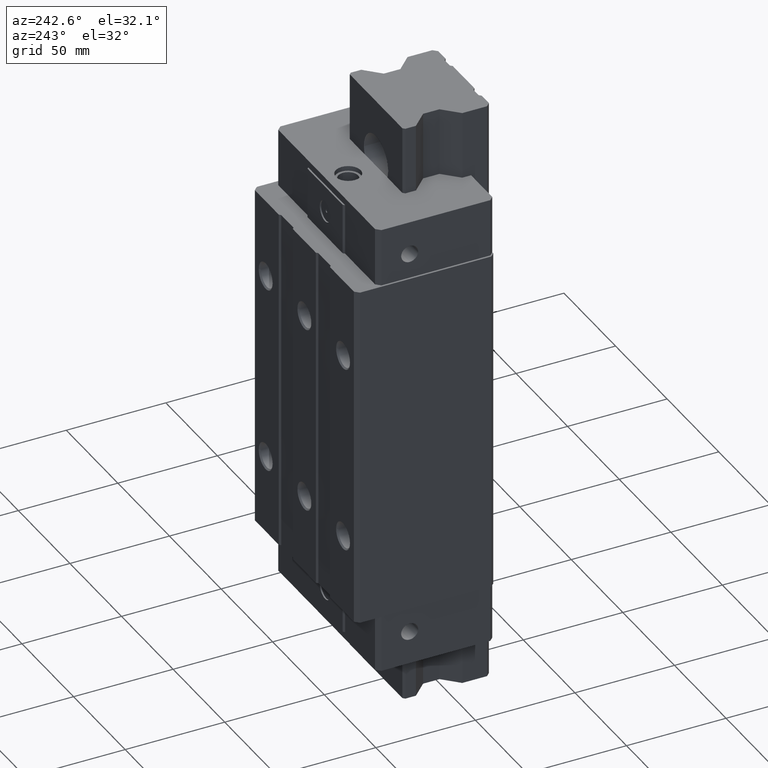
[diagram: clean part render]
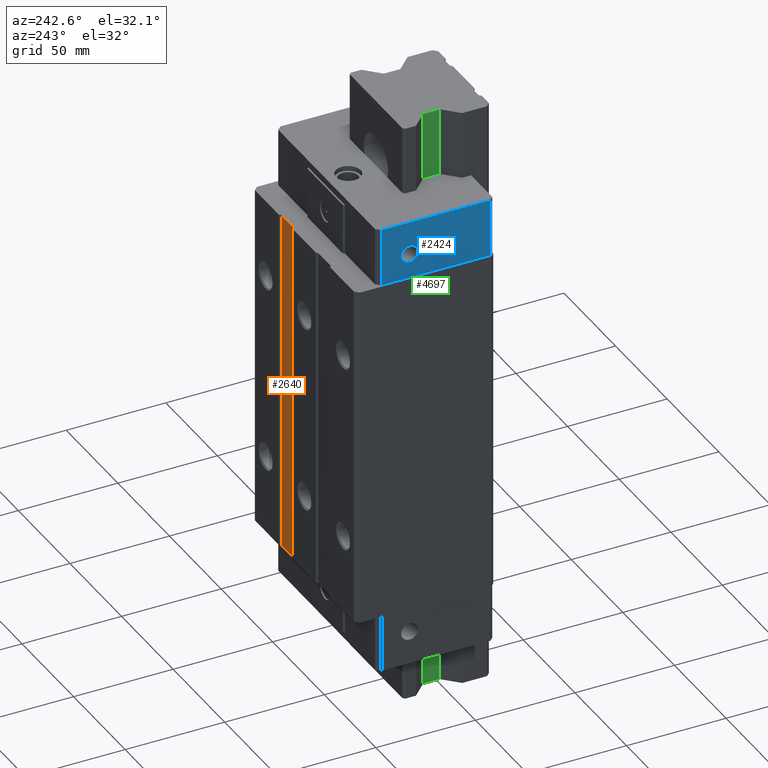
[diagram: same view with three faces highlighted in distinct colors, each labeled with its STEP entity id]
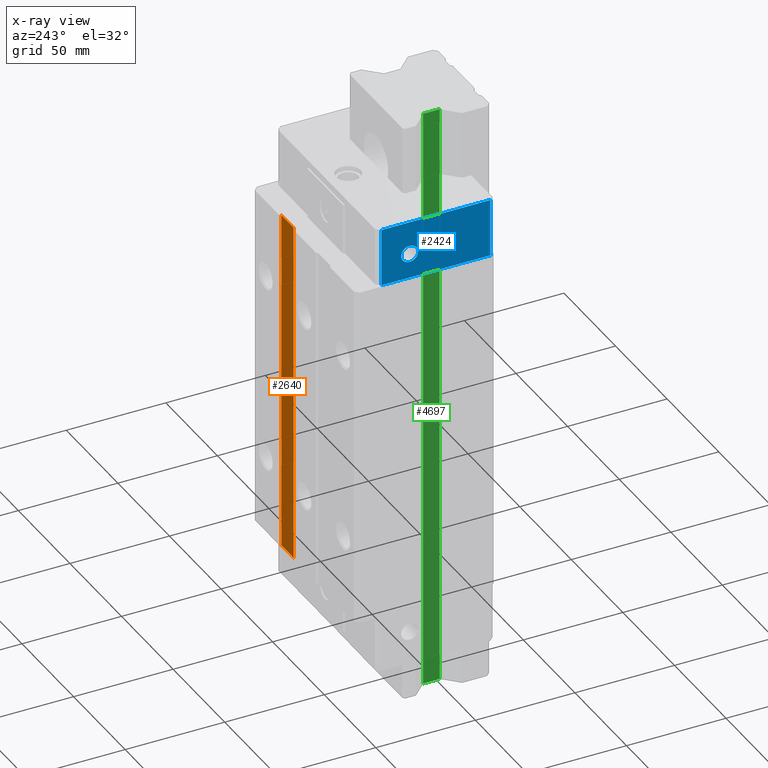
[diagram: x-ray of the same camera — body ghosted, the three highlighted faces saturated]
A machine part, auxiliary view with three faces highlighted in distinct colors.
The next image is the same camera in x-ray (body ghosted, the three faces saturated) — at least one of them is partly hidden behind the body in this view.
Their STEP definitions:

[orange] entity #2640 — the highlighted planar face has unit normal (0, 1, 0).
#209=DIRECTION('',(-1.E0,1.721922321698E-7,0.E0));
#210=VECTOR('',#209,1.200003837647E1);
#211=CARTESIAN_POINT('',(2.400008578645E1,9.200038465130E0,-8.69E1));
#212=LINE('',#211,#210);
#677=DIRECTION('',(0.E0,0.E0,1.E0));
#678=VECTOR('',#677,1.738E2);
#679=CARTESIAN_POINT('',(1.200004740998E1,9.200040531444E0,-8.69E1));
#680=LINE('',#679,#678);
#681=DIRECTION('',(0.E0,0.E0,1.E0));
#682=VECTOR('',#681,1.738E2);
#683=CARTESIAN_POINT('',(2.400008578645E1,9.200038465130E0,-8.69E1));
#684=LINE('',#683,#682);
#685=DIRECTION('',(-1.E0,1.721922324659E-7,0.E0));
#686=VECTOR('',#685,1.200003837646E1);
#687=CARTESIAN_POINT('',(2.400008578645E1,9.200038465130E0,8.69E1));
#688=LINE('',#687,#686);
#1397=CARTESIAN_POINT('',(2.400008578645E1,9.200038465130E0,-8.69E1));
#1398=VERTEX_POINT('',#1397);
#1399=CARTESIAN_POINT('',(1.200004740998E1,9.200040531444E0,-8.69E1));
#1400=VERTEX_POINT('',#1399);
#1483=CARTESIAN_POINT('',(1.200004740998E1,9.200040531444E0,8.69E1));
#1484=VERTEX_POINT('',#1483);
#1485=CARTESIAN_POINT('',(2.400008578645E1,9.200038465130E0,8.69E1));
#1486=VERTEX_POINT('',#1485);
#2628=CARTESIAN_POINT('',(2.400003433228E1,9.200047021729E0,-8.69E1));
#2629=DIRECTION('',(0.E0,1.E0,0.E0));
#2630=DIRECTION('',(-1.E0,0.E0,0.E0));
#2631=AXIS2_PLACEMENT_3D('',#2628,#2629,#2630);
#2632=PLANE('',#2631);
#2633=ORIENTED_EDGE('',*,*,#2006,.F.);
#2635=ORIENTED_EDGE('',*,*,#2634,.T.);
#2636=ORIENTED_EDGE('',*,*,#2233,.T.);
#2637=ORIENTED_EDGE('',*,*,#2621,.F.);
#2638=EDGE_LOOP('',(#2633,#2635,#2636,#2637));
#2639=FACE_OUTER_BOUND('',#2638,.F.);
#2640=ADVANCED_FACE('',(#2639),#2632,.T.);
#2006=EDGE_CURVE('',#1398,#1400,#212,.T.);
#2233=EDGE_CURVE('',#1486,#1484,#688,.T.);
#2621=EDGE_CURVE('',#1400,#1484,#680,.T.);
#2634=EDGE_CURVE('',#1398,#1486,#684,.T.);

[blue] entity #2424 — the highlighted planar face has unit normal (-1, 0, 0).
#553=DIRECTION('',(0.E0,0.E0,1.E0));
#554=VECTOR('',#553,2.91E1);
#555=CARTESIAN_POINT('',(-4.900001907349E1,-3.299945555907E0,8.69E1));
#556=LINE('',#555,#554);
#557=DIRECTION('',(0.E0,-1.E0,0.E0));
#558=VECTOR('',#557,5.4700012E1);
#559=CARTESIAN_POINT('',(-4.900001907349E1,-3.299945555907E0,1.16E2));
#560=LINE('',#559,#558);
#561=DIRECTION('',(0.E0,1.E0,0.E0));
#562=VECTOR('',#561,5.4700012E1);
#563=CARTESIAN_POINT('',(-4.900001907349E1,-5.799995755591E1,8.69E1));
#564=LINE('',#563,#562);
#587=CARTESIAN_POINT('',(-4.900001907349E1,-1.749995755591E1,9.94E1));
#588=DIRECTION('',(1.E0,0.E0,0.E0));
#589=DIRECTION('',(0.E0,0.E0,-1.E0));
#590=AXIS2_PLACEMENT_3D('',#587,#588,#589);
#592=CARTESIAN_POINT('',(-4.900001907349E1,-1.749995755591E1,9.94E1));
#593=DIRECTION('',(1.E0,0.E0,0.E0));
#594=DIRECTION('',(0.E0,0.E0,1.E0));
#595=AXIS2_PLACEMENT_3D('',#592,#593,#594);
#597=DIRECTION('',(0.E0,0.E0,1.E0));
#598=VECTOR('',#597,2.91E1);
#599=CARTESIAN_POINT('',(-4.900001907349E1,-5.799995755591E1,8.69E1));
#600=LINE('',#599,#598);
#1459=CARTESIAN_POINT('',(-4.900001907349E1,-3.299945555907E0,8.69E1));
#1460=VERTEX_POINT('',#1459);
#1461=CARTESIAN_POINT('',(-4.900001907349E1,-5.799995755591E1,8.69E1));
#1462=VERTEX_POINT('',#1461);
#1501=CARTESIAN_POINT('',(-4.900001907349E1,-3.299945555907E0,1.16E2));
#1502=VERTEX_POINT('',#1501);
#1507=CARTESIAN_POINT('',(-4.900001907349E1,-5.799995755591E1,1.16E2));
#1508=VERTEX_POINT('',#1507);
#1581=CARTESIAN_POINT('',(-4.900001907349E1,-1.749995755591E1,9.515E1));
#1582=CARTESIAN_POINT('',(-4.900001907349E1,-1.749995755591E1,1.0365E2));
#1583=VERTEX_POINT('',#1581);
#1584=VERTEX_POINT('',#1582);
#2406=CARTESIAN_POINT('',(-4.900001907349E1,-5.799995755591E1,-8.69E1));
#2407=DIRECTION('',(-1.E0,0.E0,0.E0));
#2408=DIRECTION('',(0.E0,1.E0,0.E0));
#2409=AXIS2_PLACEMENT_3D('',#2406,#2407,#2408);
#2410=PLANE('',#2409);
#2411=ORIENTED_EDGE('',*,*,#2280,.T.);
#2412=ORIENTED_EDGE('',*,*,#2315,.T.);
#2414=ORIENTED_EDGE('',*,*,#2413,.F.);
#2415=ORIENTED_EDGE('',*,*,#2209,.T.);
#2416=EDGE_LOOP('',(#2411,#2412,#2414,#2415));
#2417=FACE_OUTER_BOUND('',#2416,.F.);
#2419=ORIENTED_EDGE('',*,*,#2418,.F.);
#2421=ORIENTED_EDGE('',*,*,#2420,.F.);
#2422=EDGE_LOOP('',(#2419,#2421));
#2423=FACE_BOUND('',#2422,.F.);
#2424=ADVANCED_FACE('',(#2417,#2423),#2410,.T.);
#591=CIRCLE('',#590,4.25E0);
#596=CIRCLE('',#595,4.25E0);
#2209=EDGE_CURVE('',#1462,#1460,#564,.T.);
#2280=EDGE_CURVE('',#1460,#1502,#556,.T.);
#2315=EDGE_CURVE('',#1502,#1508,#560,.T.);
#2413=EDGE_CURVE('',#1462,#1508,#600,.T.);
#2418=EDGE_CURVE('',#1583,#1584,#591,.T.);
#2420=EDGE_CURVE('',#1584,#1583,#596,.T.);

[green] entity #4697 — the highlighted planar face has unit normal (-1, -0, 0).
#3633=DIRECTION('',(3.140715710237E-14,-1.E0,0.E0));
#3634=VECTOR('',#3633,8.257611400711E0);
#3635=CARTESIAN_POINT('',(-1.9E1,-3.979682562909E1,-1.5E2));
#3636=LINE('',#3635,#3634);
#3725=DIRECTION('',(0.E0,0.E0,1.E0));
#3726=VECTOR('',#3725,3.E2);
#3727=CARTESIAN_POINT('',(-1.9E1,-3.979682562909E1,-1.5E2));
#3728=LINE('',#3727,#3726);
#3729=DIRECTION('',(3.097692207356E-14,-1.E0,0.E0));
#3730=VECTOR('',#3729,8.257611400712E0);
#3731=CARTESIAN_POINT('',(-1.9E1,-3.979682562909E1,1.5E2));
#3732=LINE('',#3731,#3730);
#4067=DIRECTION('',(0.E0,0.E0,1.E0));
#4068=VECTOR('',#4067,3.E2);
#4069=CARTESIAN_POINT('',(-1.9E1,-4.805443702980E1,-1.5E2));
#4070=LINE('',#4069,#4068);
#4391=CARTESIAN_POINT('',(-1.9E1,-3.979682562909E1,-1.5E2));
#4392=CARTESIAN_POINT('',(-1.9E1,-4.805443702980E1,-1.5E2));
#4393=VERTEX_POINT('',#4391);
#4394=VERTEX_POINT('',#4392);
#4439=CARTESIAN_POINT('',(-1.9E1,-3.979682562909E1,1.5E2));
#4440=VERTEX_POINT('',#4439);
#4441=CARTESIAN_POINT('',(-1.9E1,-4.805443702980E1,1.5E2));
#4442=VERTEX_POINT('',#4441);
#4683=CARTESIAN_POINT('',(-1.9E1,-3.979682562909E1,-1.5E2));
#4684=DIRECTION('',(-1.E0,-1.647800160302E-13,0.E0));
#4685=DIRECTION('',(1.647800160302E-13,-1.E0,0.E0));
#4686=AXIS2_PLACEMENT_3D('',#4683,#4684,#4685);
#4687=PLANE('',#4686);
#4688=ORIENTED_EDGE('',*,*,#4632,.F.);
#4690=ORIENTED_EDGE('',*,*,#4689,.T.);
#4692=ORIENTED_EDGE('',*,*,#4691,.T.);
#4694=ORIENTED_EDGE('',*,*,#4693,.F.);
#4695=EDGE_LOOP('',(#4688,#4690,#4692,#4694));
#4696=FACE_OUTER_BOUND('',#4695,.F.);
#4697=ADVANCED_FACE('',(#4696),#4687,.T.);
#4632=EDGE_CURVE('',#4393,#4394,#3636,.T.);
#4689=EDGE_CURVE('',#4393,#4440,#3728,.T.);
#4691=EDGE_CURVE('',#4440,#4442,#3732,.T.);
#4693=EDGE_CURVE('',#4394,#4442,#4070,.T.);